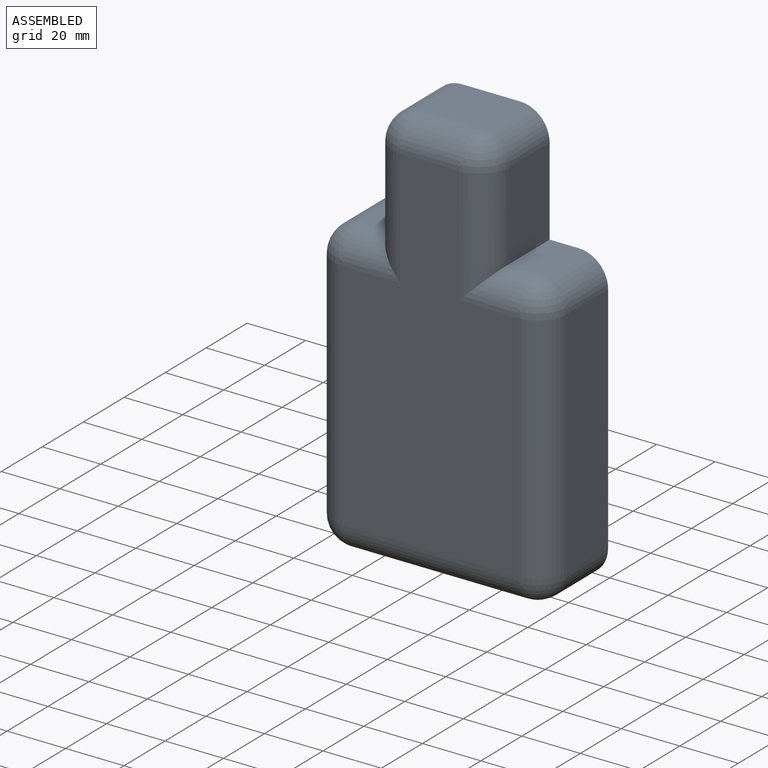
[diagram: assembled view]
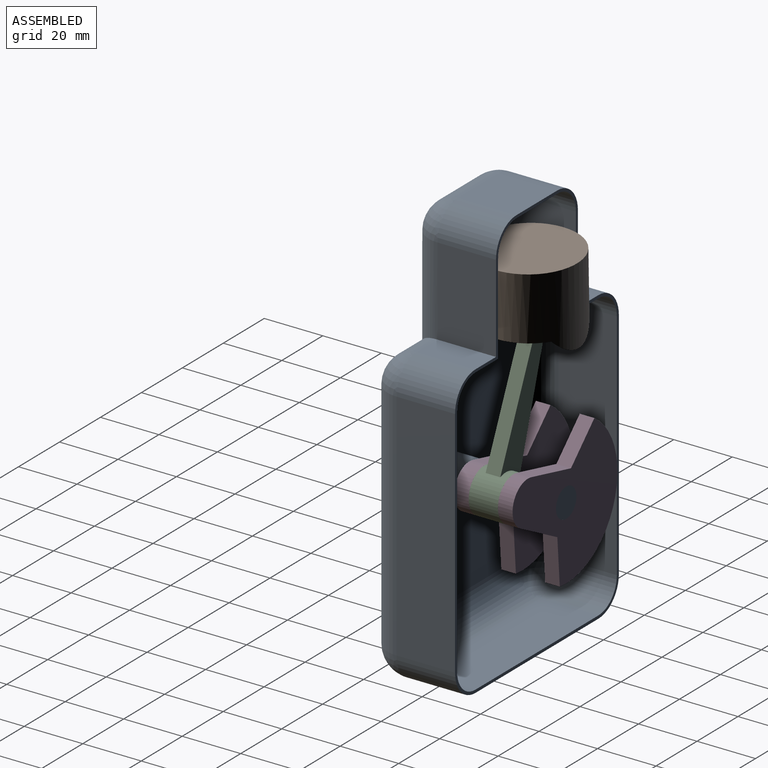
[diagram: assembled view, second angle]
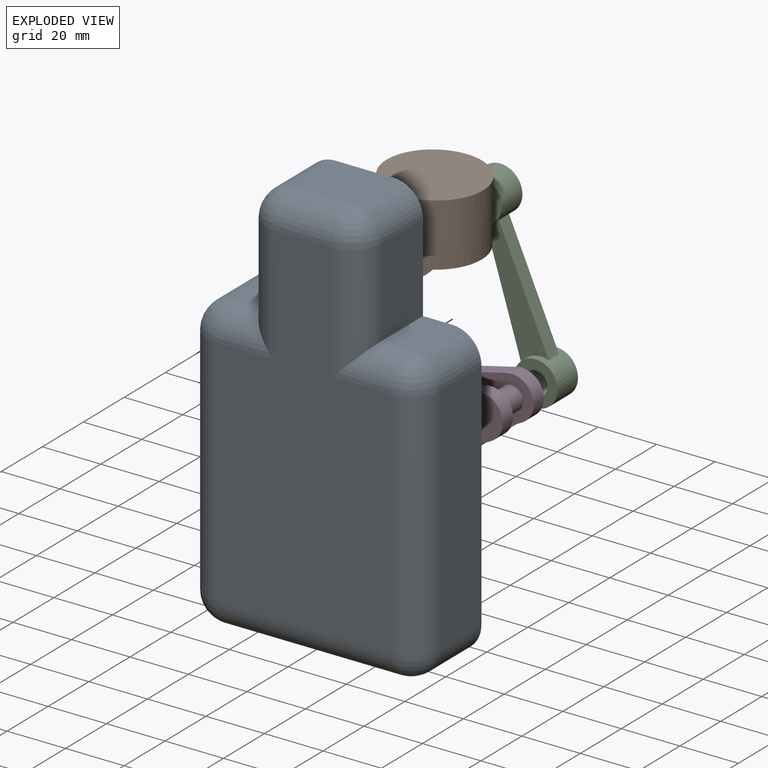
[diagram: exploded view]
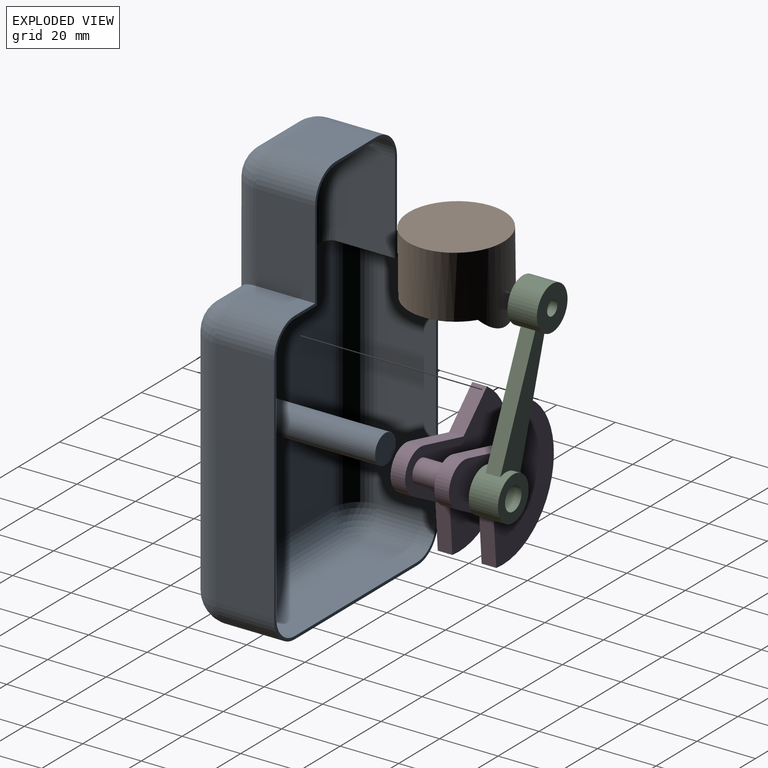
[diagram: exploded view, second angle]
ASSEMBLY  parts=4 mates=3
PART A: 74 faces, bbox 80x40x140 mm
  f0: plane 30x20mm, normal (-1,0,0), area 600mm2, adj f1,f19,f23,f39
  f1: plane 20x10mm, normal (0,0,1), area 200mm2, adj f0,f25,f28,f41
  f2: plane 80x20mm, normal (-1,0,0), area 1600mm2, adj f22,f26,f28,f40
  f3: plane 60x20mm, normal (0,0,-1), area 1200mm2, adj f16,f21,f22,f36
  f4: plane 80x20mm, normal (1,0,0), area 1600mm2, adj f10,f15,f16,f32
  f5: plane 20x10mm, normal (0,0,1), area 200mm2, adj f6,f9,f10,f29
  f6: plane 30x20mm, normal (1,0,0), area 600mm2, adj f5,f11,f13,f31
  f7: plane 20x20mm, normal (0,0,1), area 400mm2, adj f13,f17,f19,f35
  f8: plane 120x60mm, normal (0,-1,0), area 5600mm2, adj f9,f11,f15,f17,f21,f23,f25,f26
  f9: cylinder r=10mm len=20mm, axis (1,0,0), area 214.2mm2, adj f5,f8,f11,f12
  f10: cylinder r=10mm len=20mm, axis (0,-1,0), area 314.2mm2, adj f4,f5,f12,f30
  f11: cylinder r=10mm len=40mm, axis (0,0,-1), area 528.3mm2, adj f6,f8,f9,f14
  f12: sphere r=10mm, area 157.1mm2, adj f9,f10,f15
  f13: cylinder r=10mm len=20mm, axis (0,-1,0), area 314.2mm2, adj f6,f7,f14,f33
  f14: sphere r=10mm, area 157.1mm2, adj f11,f13,f17
  f15: cylinder r=10mm len=80mm, axis (0,0,-1), area 1256.6mm2, adj f4,f8,f12,f18
  f16: cylinder r=10mm len=20mm, axis (0,1,0), area 314.2mm2, adj f3,f4,f18,f34
  f17: cylinder r=10mm len=20mm, axis (1,0,0), area 314.2mm2, adj f7,f8,f14,f20
  f18: sphere r=10mm, area 157.1mm2, adj f15,f16,f21
  f19: cylinder r=10mm len=20mm, axis (0,1,0), area 314.2mm2, adj f0,f7,f20,f37
  f20: sphere r=10mm, area 157.1mm2, adj f17,f19,f23
  f21: cylinder r=10mm len=60mm, axis (-1,0,0), area 942.5mm2, adj f3,f8,f18,f24
  f22: cylinder r=10mm len=20mm, axis (0,-1,0), area 314.2mm2, adj f2,f3,f24,f38
  f23: cylinder r=10mm len=40mm, axis (0,0,1), area 528.3mm2, adj f0,f8,f20,f25
  f24: sphere r=10mm, area 157.1mm2, adj f21,f22,f26
  f25: cylinder r=10mm len=20mm, axis (1,0,0), area 214.2mm2, adj f1,f8,f23,f27
  f26: cylinder r=10mm len=80mm, axis (0,0,1), area 1256.6mm2, adj f2,f8,f24,f27
  f27: sphere r=10mm, area 157.1mm2, adj f25,f26,f28
  f28: cylinder r=10mm len=20mm, axis (0,1,0), area 314.2mm2, adj f1,f2,f27,f42
  f29: plane 10x1mm, normal (0,1,0), area 10mm2, adj f5,f30,f31,f48
  f30: plane 10x10mm, normal (0,1,0), area 14.9mm2, adj f10,f29,f32,f53
  f31: plane 31x1mm, normal (0,1,0), area 31mm2, adj f6,f29,f33,f48,f49
  f32: plane 80x1mm, normal (0,1,0), area 80mm2, adj f4,f30,f34,f47
  f33: plane 10x10mm, normal (0,1,0), area 14.9mm2, adj f13,f31,f35,f56
  f34: plane 10x10mm, normal (0,1,0), area 14.9mm2, adj f16,f32,f36,f59
  f35: plane 20x1mm, normal (0,1,0), area 20mm2, adj f7,f33,f37,f50
  f36: plane 60x1mm, normal (0,1,0), area 60mm2, adj f3,f34,f38,f46
  f37: plane 10x10mm, normal (0,1,0), area 14.9mm2, adj f19,f35,f39,f62
  f38: plane 10x10mm, normal (0,1,0), area 14.9mm2, adj f22,f36,f40,f65
  f39: plane 30x1mm, normal (0,1,0), area 30mm2, adj f0,f37,f41,f43
  f40: plane 80x1mm, normal (0,1,0), area 80mm2, adj f2,f38,f42,f45
  f41: plane 11x1mm, normal (0,1,0), area 11mm2, adj f1,f39,f42,f43,f44
  f42: plane 10x10mm, normal (0,1,0), area 14.9mm2, adj f28,f40,f41,f71
  f43: plane 31x20mm, normal (1,0,0), area 620mm2, adj f39,f41,f44,f62,f66
  f44: plane 20x11mm, normal (0,0,-1), area 220mm2, adj f41,f43,f68,f71
  f45: plane 80x20mm, normal (1,0,0), area 1600mm2, adj f40,f65,f69,f71
  f46: plane 60x20mm, normal (0,0,1), area 1200mm2, adj f36,f59,f64,f65
  f47: plane 80x20mm, normal (-1,0,0), area 1600mm2, adj f32,f53,f58,f59
  f48: plane 20x11mm, normal (0,0,-1), area 220mm2, adj f29,f31,f49,f52,f53
  f49: plane 31x20mm, normal (-1,0,0), area 620mm2, adj f31,f48,f54,f56
  f50: plane 20x20mm, normal (0,0,-1), area 400mm2, adj f35,f56,f60,f62
  f51: plane 120x60mm, normal (0,1,0), area 5521.5mm2, adj f52,f54,f58,f60,f64,f66,f68,f69
  f52: cylinder r=9mm len=20mm, axis (1,0,0), area 201.7mm2, adj f48,f51,f54,f55
  f53: cylinder r=9mm len=20mm, axis (0,-1,0), area 282.7mm2, adj f30,f47,f48,f55
  f54: cylinder r=9mm len=40mm, axis (0,0,-1), area 484.5mm2, adj f49,f51,f52,f57
  f55: sphere r=9mm, area 127.2mm2, adj f52,f53,f58
  f56: cylinder r=9mm len=20mm, axis (0,-1,0), area 282.7mm2, adj f33,f49,f50,f57
  f57: sphere r=9mm, area 127.2mm2, adj f54,f56,f60
  f58: cylinder r=9mm len=80mm, axis (0,0,-1), area 1131mm2, adj f47,f51,f55,f61
  f59: cylinder r=9mm len=20mm, axis (0,1,0), area 282.7mm2, adj f34,f46,f47,f61
  f60: cylinder r=9mm len=20mm, axis (1,0,0), area 282.7mm2, adj f50,f51,f57,f63
  f61: sphere r=9mm, area 127.2mm2, adj f58,f59,f64
  f62: cylinder r=9mm len=20mm, axis (0,1,0), area 282.7mm2, adj f37,f43,f50,f63
  f63: sphere r=9mm, area 127.2mm2, adj f60,f62,f66
  f64: cylinder r=9mm len=60mm, axis (-1,0,0), area 848.2mm2, adj f46,f51,f61,f67
  f65: cylinder r=9mm len=20mm, axis (0,-1,0), area 282.7mm2, adj f38,f45,f46,f67
  f66: cylinder r=9mm len=40mm, axis (0,0,1), area 484.5mm2, adj f43,f51,f63,f68
  f67: sphere r=9mm, area 127.2mm2, adj f64,f65,f69
  f68: cylinder r=9mm len=20mm, axis (1,0,0), area 201.7mm2, adj f44,f51,f66,f70
  f69: cylinder r=9mm len=80mm, axis (0,0,1), area 1131mm2, adj f45,f51,f67,f70
  f70: sphere r=9mm, area 127.2mm2, adj f68,f69,f71
  f71: cylinder r=9mm len=20mm, axis (0,1,0), area 282.7mm2, adj f42,f44,f45,f70
  f72: cylinder r=5mm len=39mm, axis (0,1,0), area 1225.2mm2, adj f51,f73
  f73: plane 10x10mm, normal (0,1,0), area 78.5mm2, adj f72
PART B: 20 faces, bbox 33x33x26.5 mm
  f0: cylinder r=16.5mm len=33mm, axis (0,0,-1), area 2360.3mm2, adj f4,f16,f17,f18,f19
  f1: cylinder r=5mm len=10mm, axis (0,1,0), area 143.6mm2, adj f2,f6,f8,f11
  f2: plane 28.28x15mm, normal (-1,0,0), area 344.3mm2, adj f1,f3,f6,f7,f9,f10,f11
  f3: plane 28.28x10mm, normal (0,0,-1), area 206.3mm2, adj f2,f6
  f4: plane 33x33mm, normal (0,0,1), area 855.3mm2, adj f0
  f5: plane 28.28x10mm, normal (0,0,-1), area 206.3mm2, adj f6,f8
  f6: cylinder r=15mm len=30mm, axis (0,0,-1), area 1541mm2, adj f1,f2,f3,f5,f7,f8,f16,f17
  f7: cylinder r=5mm len=10mm, axis (0,1,0), area 143.6mm2, adj f2,f6,f8,f10
  f8: plane 28.28x15mm, normal (1,0,0), area 344.3mm2, adj f1,f5,f6,f7,f9,f10,f11
  f9: plane 10x10mm, normal (0,0,-1), area 100mm2, adj f2,f8,f10,f11
  f10: plane 13x10mm, normal (0,1,0), area 99.6mm2, adj f2,f7,f8,f9,f14
  f11: plane 13x10mm, normal (0,-1,0), area 99.6mm2, adj f1,f2,f8,f9,f13
  f12: cylinder r=15mm len=5mm, axis (0,0,-1), area 19.7mm2, adj f13
  f13: cylinder r=2.5mm len=10mm, axis (0,1,0), area 157.1mm2, adj f11,f12
  f14: cylinder r=2.5mm len=10mm, axis (0,1,0), area 157.1mm2, adj f10,f15
  f15: cylinder r=15mm len=5mm, axis (0,0,-1), area 19.7mm2, adj f14
  f16: plane 18.65x5mm, normal (0,-0.87,-0.5), area 49.6mm2, adj f0,f6,f18,f19
  f17: plane 18.65x5mm, normal (0,0.87,-0.5), area 49.6mm2, adj f0,f6,f18,f19
  f18: plane 27.23x10.2mm, normal (0,0,-1), area 49.4mm2, adj f0,f6,f16,f17
  f19: plane 27.23x10.2mm, normal (0,0,-1), area 49.4mm2, adj f0,f6,f16,f17
PART C: 12 faces, bbox 32.3x10x67.2 mm
  f0: plane 15x15mm, normal (0,-1,0), area 157.1mm2, adj f2,f3
  f1: plane 15x15mm, normal (0,1,0), area 157.1mm2, adj f2,f3
  f2: cylinder r=2.5mm len=10mm, axis (0,1,0), area 157.1mm2, adj f0,f1
  f3: cylinder r=7.5mm len=15mm, axis (0,1,0), area 445.8mm2, adj f0,f1,f8,f9,f10,f11
  f4: plane 15x15mm, normal (0,-1,0), area 126.4mm2, adj f6,f7
  f5: plane 15x15mm, normal (0,1,0), area 126.4mm2, adj f6,f7
  f6: cylinder r=4mm len=10mm, axis (0,1,0), area 251.3mm2, adj f4,f5
  f7: cylinder r=7.5mm len=15mm, axis (0,1,0), area 416.5mm2, adj f4,f5,f8,f9,f10,f11
  f8: plane 40.97x10.81mm, normal (0.97,0,-0.26), area 211.9mm2, adj f3,f7,f10,f11
  f9: plane 39.49x15.59mm, normal (-0.93,0,0.37), area 212.3mm2, adj f3,f7,f10,f11
  f10: plane 42.64x20.31mm, normal (0,-1,0), area 303mm2, adj f3,f7,f8,f9
  f11: plane 42.64x20.31mm, normal (0,1,0), area 303mm2, adj f3,f7,f8,f9
PART D: 21 faces, bbox 49.8x20x43.1 mm
  f0: cylinder r=10mm len=5mm, axis (0,-1,0), area 3.8mm2, adj f1,f6,f8,f9
  f1: plane 17.94x7.56mm, normal (0.39,0,0.92), area 97.3mm2, adj f0,f2,f8,f9
  f2: cylinder r=7.5mm len=13.48mm, axis (0,-1,0), area 108.4mm2, adj f1,f3,f8,f9
  f3: plane 15.81x11.99mm, normal (-0.6,0,-0.8), area 99.2mm2, adj f2,f4,f8,f9
  f4: plane 15.9x5mm, normal (-1,0,0.09), area 79.8mm2, adj f3,f5,f8,f9
  f5: cylinder r=25mm len=43.15mm, axis (0,-1,0), area 335.6mm2, adj f4,f6,f8,f9
  f6: plane 12.97x9.08mm, normal (-0.57,0,0.82), area 79.2mm2, adj f0,f5,f8,f9
  f7: cylinder r=5mm len=10mm, axis (0,-1,0), area 157.1mm2, adj f8,f9
  f8: plane 49.82x43.15mm, normal (0,1,0), area 1273mm2, adj f0,f1,f2,f3,f4,f5,f6,f7
  f9: plane 49.82x43.15mm, normal (0,-1,0), area 1222.7mm2, adj f0,f1,f2,f3,f4,f5,f6,f7
  f10: cylinder r=4mm len=10mm, axis (0,1,0), area 251.3mm2, adj f9,f20
  f11: cylinder r=10mm len=5mm, axis (0,1,0), area 3.8mm2, adj f12,f17,f19,f20
  f12: plane 17.94x7.56mm, normal (0.39,0,0.92), area 97.3mm2, adj f11,f13,f19,f20
  f13: cylinder r=7.5mm len=13.48mm, axis (0,1,0), area 108.4mm2, adj f12,f14,f19,f20
  f14: plane 15.81x11.99mm, normal (-0.6,0,-0.8), area 99.2mm2, adj f13,f15,f19,f20
  f15: plane 15.9x5mm, normal (-1,0,0.09), area 79.8mm2, adj f14,f16,f19,f20
  f16: cylinder r=25mm len=43.15mm, axis (0,1,0), area 335.6mm2, adj f15,f17,f19,f20
  f17: plane 12.97x9.08mm, normal (-0.57,0,0.82), area 79.2mm2, adj f11,f16,f19,f20
  f18: cylinder r=5mm len=10mm, axis (0,1,0), area 157.1mm2, adj f19,f20
  f19: plane 49.82x43.15mm, normal (0,-1,0), area 1273mm2, adj f11,f12,f13,f14,f15,f16,f17,f18
  f20: plane 49.82x43.15mm, normal (0,1,0), area 1222.7mm2, adj f10,f11,f12,f13,f14,f15,f16,f17
PLACE A t=(3.74,3.91,-17.5)mm fixed
PLACE B rot(axis=(0,1,0),1.2deg) t=(2.1,-8.59,-21.02)mm
PLACE C rot(axis=(0,-1,0),38.6deg) t=(42.23,-6.09,-7.46)mm
PLACE D rot(axis=(0,1,0),129.3deg) t=(3.74,-6.09,-17.5)mm
MATE revolute C.f6 <-> D.f2  axis (0,1,0) through (22.45,-11.09,-10.44)mm
MATE revolute C.f2 <-> B.f1  axis (0,1,0) through (3.45,-3.59,41.17)mm
MATE revolute A.f72 <-> D.f0  axis (0,1,0) through (3.74,3.91,-17.5)mm
